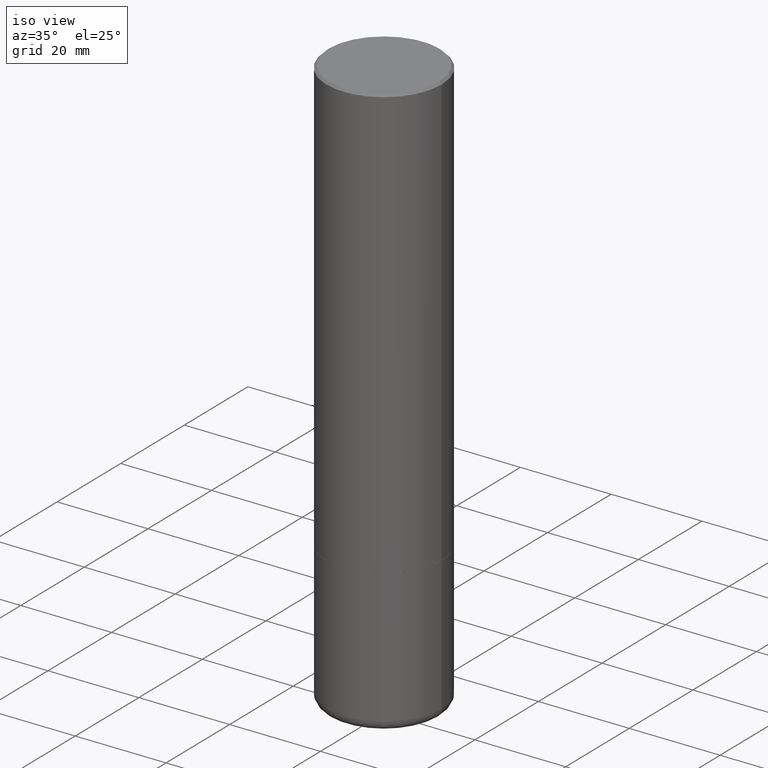
[diagram: clean part render]
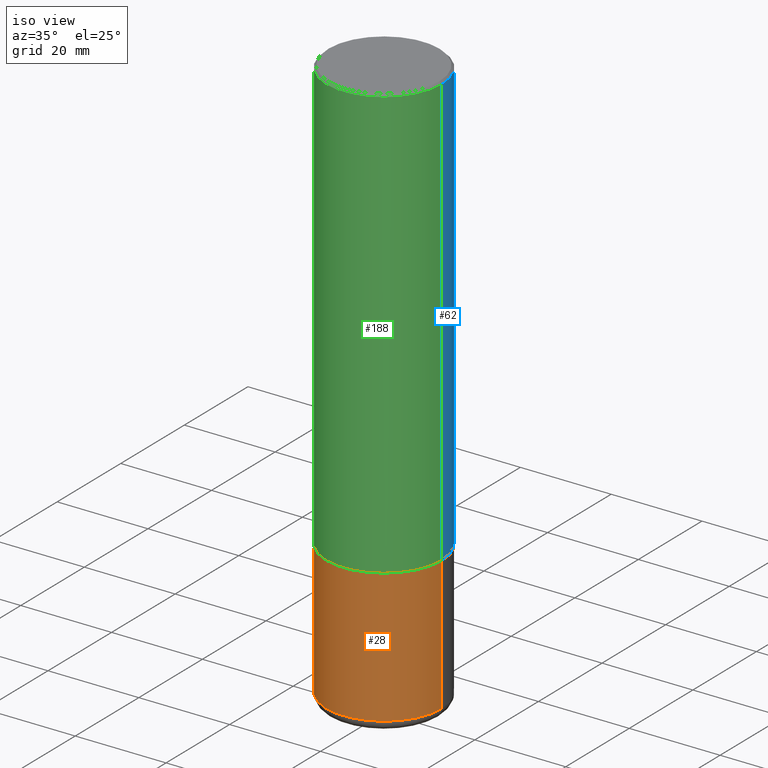
[diagram: same view with three faces highlighted in distinct colors, each labeled with its STEP entity id]
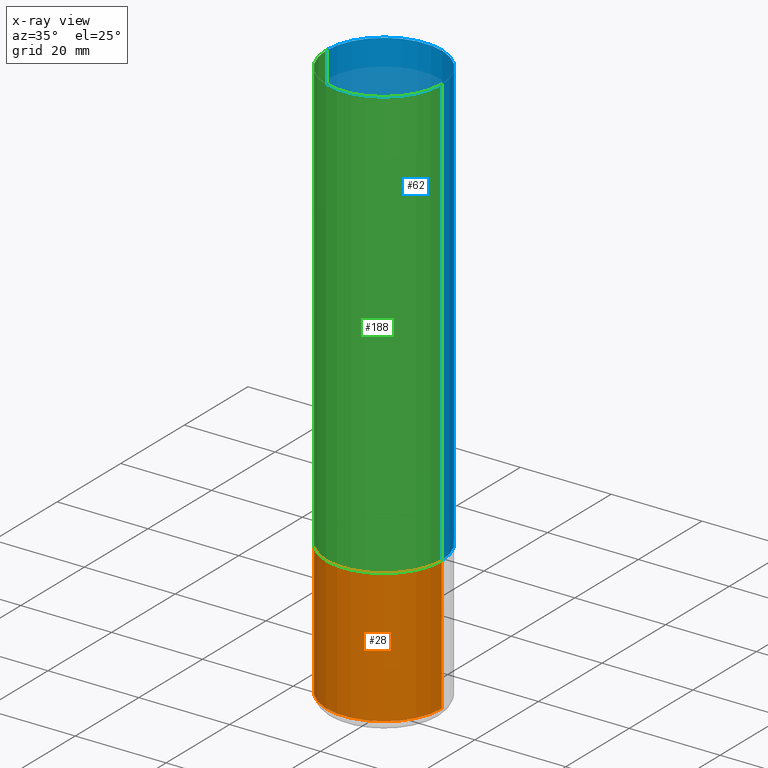
[diagram: x-ray of the same camera — body ghosted, the three highlighted faces saturated]
A machine part, iso view with three faces highlighted in distinct colors.
The next image is the same camera in x-ray (body ghosted, the three faces saturated) — at least one of them is partly hidden behind the body in this view.
Their STEP definitions:

[orange] entity #28 — the highlighted cylindrical surface (partial cylindrical patch) has radius 12.7 mm, axis along (-0, 0, 1).
#11 = CARTESIAN_POINT ( 'NONE',  ( -0.4999999999999997224, 3.552713678800498957E-15, -2.459467545127451490E-29 ) ) ;
#28 = ADVANCED_FACE ( 'NONE', ( #319 ), #431, .T. ) ;
#43 = EDGE_LOOP ( 'NONE', ( #341, #463, #210, #94 ) ) ;
#52 = CARTESIAN_POINT ( 'NONE',  ( 9.170508023194262238E-29, -1.309305502066179741E-14, -3.750000000000000000 ) ) ;
#53 = VERTEX_POINT ( 'NONE', #178 ) ;
#58 = CARTESIAN_POINT ( 'NONE',  ( -0.5000000000000001110, -1.156540650091130805E-14, -4.910003426924224534 ) ) ;
#61 = DIRECTION ( 'NONE',  ( 1.000000000000000000, -6.982962677686266711E-15, 4.876176775795935793E-29 ) ) ;
#86 = LINE ( 'NONE', #11, #413 ) ;
#94 = ORIENTED_EDGE ( 'NONE', *, *, #165, .F. ) ;
#129 = DIRECTION ( 'NONE',  ( -2.445468806185136877E-29, 3.491481338843145188E-15, 1.000000000000000000 ) ) ;
#159 = CIRCLE ( 'NONE', #263, 0.4999999999999994449 ) ;
#165 = EDGE_CURVE ( 'NONE', #475, #53, #159, .T. ) ;
#168 = AXIS2_PLACEMENT_3D ( 'NONE', #175, #368, #181 ) ;
#172 = DIRECTION ( 'NONE',  ( -2.445468806185136597E-29, 3.491481338843145583E-15, 1.000000000000000000 ) ) ;
#175 = CARTESIAN_POINT ( 'NONE',  ( 1.200726021880531330E-28, -1.714318533876182370E-14, -4.910003426924224534 ) ) ;
#178 = CARTESIAN_POINT ( 'NONE',  ( 0.4999999999999994449, -1.658453635950492761E-14, -3.750000000000000000 ) ) ;
#181 = DIRECTION ( 'NONE',  ( 1.000000000000000000, -6.982962677686265133E-15, 0.000000000000000000 ) ) ;
#210 = ORIENTED_EDGE ( 'NONE', *, *, #407, .T. ) ;
#237 = DIRECTION ( 'NONE',  ( -2.445468806185136877E-29, 3.491481338843145188E-15, 1.000000000000000000 ) ) ;
#242 = CARTESIAN_POINT ( 'NONE',  ( 0.5000000000000001110, -2.063466667760495706E-14, -4.910003426924224534 ) ) ;
#263 = AXIS2_PLACEMENT_3D ( 'NONE', #52, #394, #284 ) ;
#273 = CIRCLE ( 'NONE', #168, 0.5000000000000001110 ) ;
#284 = DIRECTION ( 'NONE',  ( 1.000000000000000000, -6.982962677686266711E-15, 0.000000000000000000 ) ) ;
#308 = VERTEX_POINT ( 'NONE', #242 ) ;
#319 = FACE_OUTER_BOUND ( 'NONE', #43, .T. ) ;
#341 = ORIENTED_EDGE ( 'NONE', *, *, #357, .F. ) ;
#343 = CARTESIAN_POINT ( 'NONE',  ( -0.4999999999999994449, -1.156540650091131278E-14, -3.750000000000000000 ) ) ;
#357 = EDGE_CURVE ( 'NONE', #450, #475, #86, .T. ) ;
#368 = DIRECTION ( 'NONE',  ( -2.445468806185136597E-29, 3.491481338843145583E-15, 1.000000000000000000 ) ) ;
#371 = AXIS2_PLACEMENT_3D ( 'NONE', #395, #172, #61 ) ;
#394 = DIRECTION ( 'NONE',  ( -2.445468806185136597E-29, 3.491481338843145583E-15, 1.000000000000000000 ) ) ;
#395 = CARTESIAN_POINT ( 'NONE',  ( 0.000000000000000000, 0.000000000000000000, 0.000000000000000000 ) ) ;
#407 = EDGE_CURVE ( 'NONE', #308, #53, #452, .T. ) ;
#413 = VECTOR ( 'NONE', #237, 39.37007874015748143 ) ;
#431 = CYLINDRICAL_SURFACE ( 'NONE', #371, 0.4999999999999997224 ) ;
#450 = VERTEX_POINT ( 'NONE', #58 ) ;
#452 = LINE ( 'NONE', #461, #468 ) ;
#461 = CARTESIAN_POINT ( 'NONE',  ( 0.4999999999999997224, -3.491481338843131383E-15, 2.438088387897966495E-29 ) ) ;
#463 = ORIENTED_EDGE ( 'NONE', *, *, #482, .T. ) ;
#468 = VECTOR ( 'NONE', #129, 39.37007874015748143 ) ;
#475 = VERTEX_POINT ( 'NONE', #343 ) ;
#482 = EDGE_CURVE ( 'NONE', #450, #308, #273, .T. ) ;

[blue] entity #62 — the highlighted cylindrical surface (partial cylindrical patch) has radius 12.7 mm, axis along (-0, 0, 1).
#1 = DIRECTION ( 'NONE',  ( 1.000000000000000000, -6.982962677686266711E-15, 0.000000000000000000 ) ) ;
#4 = CARTESIAN_POINT ( 'NONE',  ( 9.168062554388078877E-29, -1.308956353932295441E-14, -3.749000000000000554 ) ) ;
#9 = ORIENTED_EDGE ( 'NONE', *, *, #135, .F. ) ;
#14 = CARTESIAN_POINT ( 'NONE',  ( -0.4999999999999994449, -3.026982904249409106E-15, -3.749000000000000554 ) ) ;
#36 = VECTOR ( 'NONE', #171, 39.37007874015748143 ) ;
#49 = DIRECTION ( 'NONE',  ( -2.445468806185136597E-29, 3.491481338843145583E-15, 1.000000000000000000 ) ) ;
#54 = DIRECTION ( 'NONE',  ( -2.445468806185136597E-29, 3.491481338843145583E-15, 1.000000000000000000 ) ) ;
#62 = ADVANCED_FACE ( 'NONE', ( #404 ), #152, .T. ) ;
#89 = DIRECTION ( 'NONE',  ( 1.000000000000000000, -6.982962677686266711E-15, 0.000000000000000000 ) ) ;
#103 = ORIENTED_EDGE ( 'NONE', *, *, #373, .T. ) ;
#109 = VECTOR ( 'NONE', #203, 39.37007874015748143 ) ;
#135 = EDGE_CURVE ( 'NONE', #162, #205, #166, .T. ) ;
#152 = CYLINDRICAL_SURFACE ( 'NONE', #388, 0.4999999999999992228 ) ;
#162 = VERTEX_POINT ( 'NONE', #355 ) ;
#166 = LINE ( 'NONE', #311, #36 ) ;
#171 = DIRECTION ( 'NONE',  ( -2.445468806185136877E-29, 3.491481338843145188E-15, 1.000000000000000000 ) ) ;
#187 = CIRCLE ( 'NONE', #241, 0.4999999999999990563 ) ;
#193 = CARTESIAN_POINT ( 'NONE',  ( -0.4999999999999990563, 3.421651712066262957E-15, -0.02000000000000020164 ) ) ;
#197 = EDGE_CURVE ( 'NONE', #374, #304, #465, .T. ) ;
#203 = DIRECTION ( 'NONE',  ( -2.445468806185136877E-29, 3.491481338843145188E-15, 1.000000000000000000 ) ) ;
#205 = VERTEX_POINT ( 'NONE', #280 ) ;
#241 = AXIS2_PLACEMENT_3D ( 'NONE', #276, #49, #89 ) ;
#276 = CARTESIAN_POINT ( 'NONE',  ( 4.890937612370322204E-31, -6.982962677686361867E-17, -0.02000000000000020164 ) ) ;
#280 = CARTESIAN_POINT ( 'NONE',  ( 0.4999999999999990563, -3.500078625662622769E-15, -0.02000000000000020164 ) ) ;
#304 = VERTEX_POINT ( 'NONE', #193 ) ;
#306 = DIRECTION ( 'NONE',  ( -2.445468806185136597E-29, 3.491481338843145583E-15, 1.000000000000000000 ) ) ;
#311 = CARTESIAN_POINT ( 'NONE',  ( 0.4999999999999992228, -3.491481338843128228E-15, 2.438088387897963973E-29 ) ) ;
#337 = EDGE_CURVE ( 'NONE', #205, #304, #187, .T. ) ;
#355 = CARTESIAN_POINT ( 'NONE',  ( 0.4999999999999994449, -1.658104487816608303E-14, -3.749000000000000554 ) ) ;
#373 = EDGE_CURVE ( 'NONE', #162, #374, #437, .T. ) ;
#374 = VERTEX_POINT ( 'NONE', #14 ) ;
#388 = AXIS2_PLACEMENT_3D ( 'NONE', #447, #306, #416 ) ;
#404 = FACE_OUTER_BOUND ( 'NONE', #480, .T. ) ;
#410 = ORIENTED_EDGE ( 'NONE', *, *, #197, .T. ) ;
#416 = DIRECTION ( 'NONE',  ( 1.000000000000000000, -6.982962677686267499E-15, 4.876176775795935793E-29 ) ) ;
#422 = CARTESIAN_POINT ( 'NONE',  ( -0.4999999999999992228, 3.552713678800495407E-15, -2.459467545127449248E-29 ) ) ;
#435 = ORIENTED_EDGE ( 'NONE', *, *, #337, .F. ) ;
#437 = CIRCLE ( 'NONE', #454, 0.4999999999999994449 ) ;
#447 = CARTESIAN_POINT ( 'NONE',  ( 0.000000000000000000, 0.000000000000000000, 0.000000000000000000 ) ) ;
#454 = AXIS2_PLACEMENT_3D ( 'NONE', #4, #54, #1 ) ;
#465 = LINE ( 'NONE', #422, #109 ) ;
#480 = EDGE_LOOP ( 'NONE', ( #103, #410, #435, #9 ) ) ;

[green] entity #188 — the highlighted cylindrical surface (partial cylindrical patch) has radius 12.7 mm, axis along (-0, 0, 1).
#14 = CARTESIAN_POINT ( 'NONE',  ( -0.4999999999999994449, -3.026982904249409106E-15, -3.749000000000000554 ) ) ;
#36 = VECTOR ( 'NONE', #171, 39.37007874015748143 ) ;
#83 = CIRCLE ( 'NONE', #360, 0.4999999999999990563 ) ;
#98 = CYLINDRICAL_SURFACE ( 'NONE', #441, 0.4999999999999992228 ) ;
#109 = VECTOR ( 'NONE', #203, 39.37007874015748143 ) ;
#125 = ORIENTED_EDGE ( 'NONE', *, *, #135, .T. ) ;
#130 = DIRECTION ( 'NONE',  ( 1.000000000000000000, -6.982962677686266711E-15, 0.000000000000000000 ) ) ;
#135 = EDGE_CURVE ( 'NONE', #162, #205, #166, .T. ) ;
#161 = DIRECTION ( 'NONE',  ( 1.000000000000000000, -6.982962677686267499E-15, 4.876176775795935793E-29 ) ) ;
#162 = VERTEX_POINT ( 'NONE', #355 ) ;
#166 = LINE ( 'NONE', #311, #36 ) ;
#171 = DIRECTION ( 'NONE',  ( -2.445468806185136877E-29, 3.491481338843145188E-15, 1.000000000000000000 ) ) ;
#188 = ADVANCED_FACE ( 'NONE', ( #247 ), #98, .T. ) ;
#192 = EDGE_LOOP ( 'NONE', ( #315, #267, #125, #251 ) ) ;
#193 = CARTESIAN_POINT ( 'NONE',  ( -0.4999999999999990563, 3.421651712066262957E-15, -0.02000000000000020164 ) ) ;
#194 = DIRECTION ( 'NONE',  ( 1.000000000000000000, -6.982962677686266711E-15, 0.000000000000000000 ) ) ;
#197 = EDGE_CURVE ( 'NONE', #374, #304, #465, .T. ) ;
#203 = DIRECTION ( 'NONE',  ( -2.445468806185136877E-29, 3.491481338843145188E-15, 1.000000000000000000 ) ) ;
#204 = EDGE_CURVE ( 'NONE', #304, #205, #83, .T. ) ;
#205 = VERTEX_POINT ( 'NONE', #280 ) ;
#230 = DIRECTION ( 'NONE',  ( -2.445468806185136597E-29, 3.491481338843145583E-15, 1.000000000000000000 ) ) ;
#247 = FACE_OUTER_BOUND ( 'NONE', #192, .T. ) ;
#251 = ORIENTED_EDGE ( 'NONE', *, *, #204, .F. ) ;
#267 = ORIENTED_EDGE ( 'NONE', *, *, #455, .T. ) ;
#280 = CARTESIAN_POINT ( 'NONE',  ( 0.4999999999999990563, -3.500078625662622769E-15, -0.02000000000000020164 ) ) ;
#283 = CARTESIAN_POINT ( 'NONE',  ( 9.168062554388078877E-29, -1.308956353932295441E-14, -3.749000000000000554 ) ) ;
#304 = VERTEX_POINT ( 'NONE', #193 ) ;
#311 = CARTESIAN_POINT ( 'NONE',  ( 0.4999999999999992228, -3.491481338843128228E-15, 2.438088387897963973E-29 ) ) ;
#315 = ORIENTED_EDGE ( 'NONE', *, *, #197, .F. ) ;
#332 = AXIS2_PLACEMENT_3D ( 'NONE', #283, #230, #194 ) ;
#347 = DIRECTION ( 'NONE',  ( -2.445468806185136597E-29, 3.491481338843145583E-15, 1.000000000000000000 ) ) ;
#352 = CARTESIAN_POINT ( 'NONE',  ( 4.890937612370322204E-31, -6.982962677686361867E-17, -0.02000000000000020164 ) ) ;
#355 = CARTESIAN_POINT ( 'NONE',  ( 0.4999999999999994449, -1.658104487816608303E-14, -3.749000000000000554 ) ) ;
#360 = AXIS2_PLACEMENT_3D ( 'NONE', #352, #462, #130 ) ;
#374 = VERTEX_POINT ( 'NONE', #14 ) ;
#397 = CARTESIAN_POINT ( 'NONE',  ( 0.000000000000000000, 0.000000000000000000, 0.000000000000000000 ) ) ;
#422 = CARTESIAN_POINT ( 'NONE',  ( -0.4999999999999992228, 3.552713678800495407E-15, -2.459467545127449248E-29 ) ) ;
#441 = AXIS2_PLACEMENT_3D ( 'NONE', #397, #347, #161 ) ;
#455 = EDGE_CURVE ( 'NONE', #374, #162, #485, .T. ) ;
#462 = DIRECTION ( 'NONE',  ( -2.445468806185136597E-29, 3.491481338843145583E-15, 1.000000000000000000 ) ) ;
#465 = LINE ( 'NONE', #422, #109 ) ;
#485 = CIRCLE ( 'NONE', #332, 0.4999999999999994449 ) ;